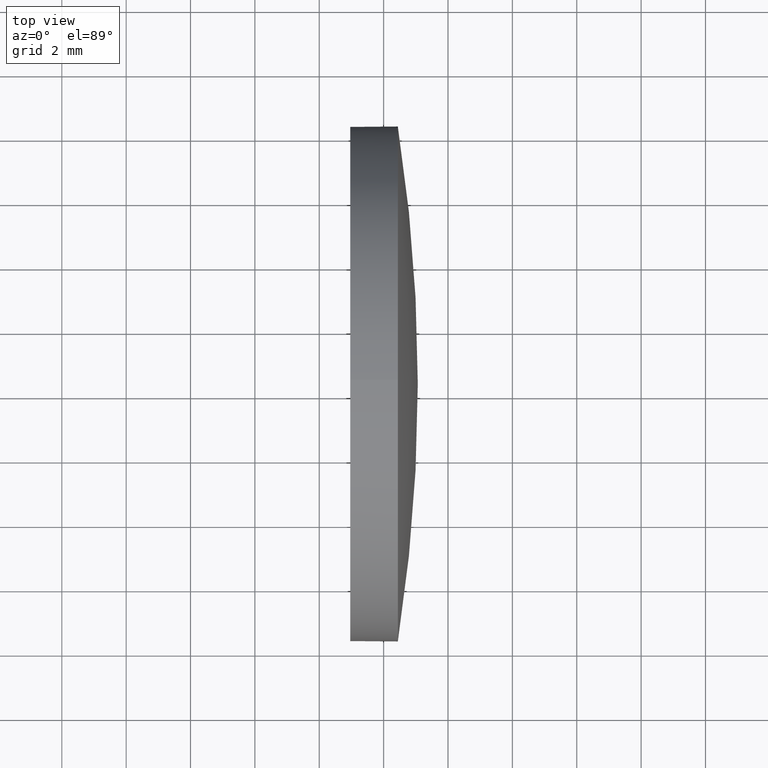
[diagram: clean part render]
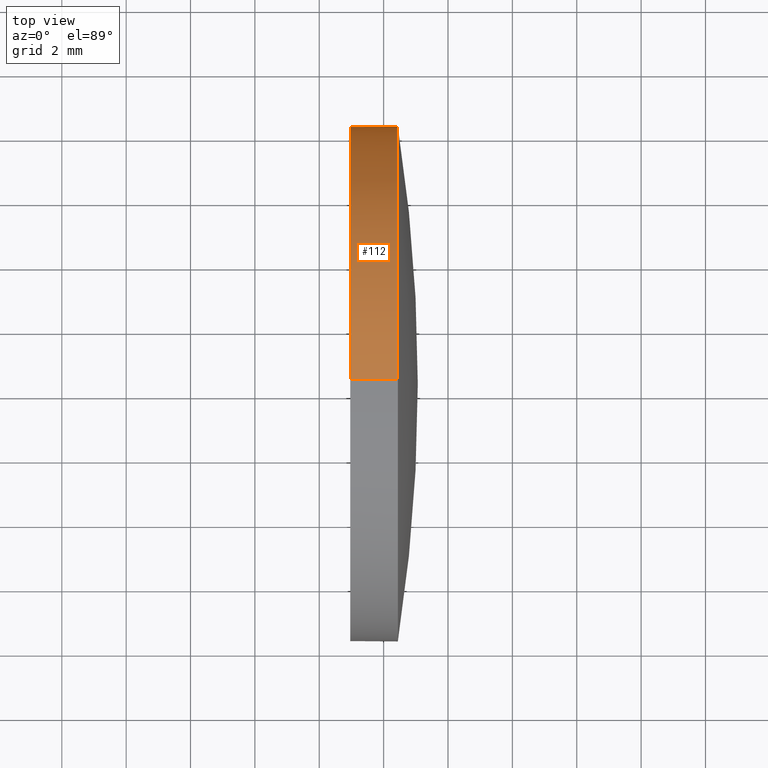
[diagram: same view with one face highlighted and labeled with its STEP entity id]
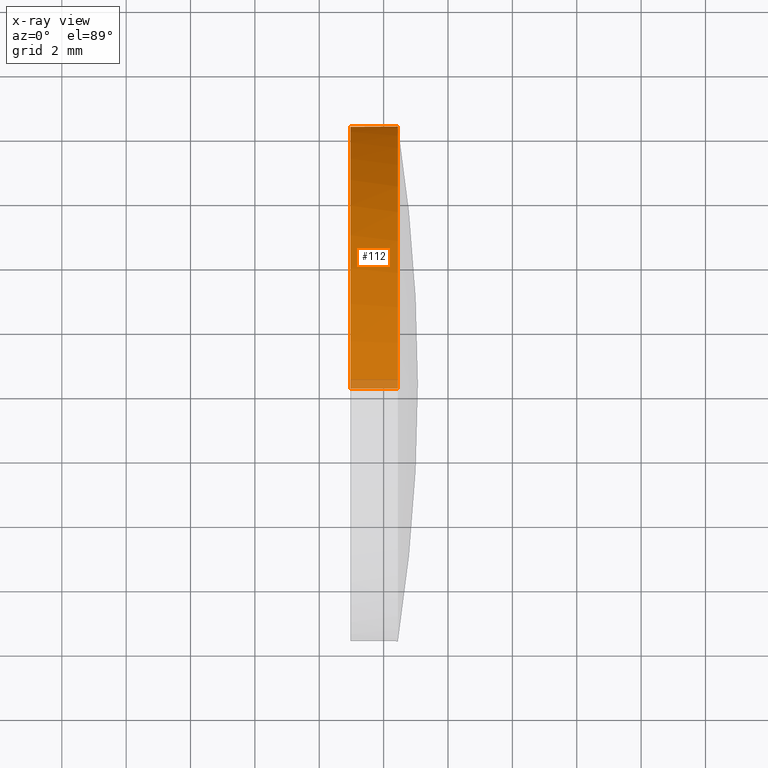
[diagram: x-ray of the same camera — body ghosted, the highlighted face saturated]
A machine part, top view. The second image highlights one B-rep face of the part: STEP entity #112.
The next image is the same camera in x-ray: the body ghosted, the highlighted face saturated — about 3% of this face is hidden behind the body in this view.
In plain terms, the highlighted cylindrical surface (partial cylindrical patch) has radius 8 mm, axis along (-1, -0, -0).
Its self-contained STEP definition (entity closure, byte-faithful):
#2 = VERTEX_POINT ( 'NONE', #34 ) ;
#3 = ORIENTED_EDGE ( 'NONE', *, *, #166, .T. ) ;
#7 = CARTESIAN_POINT ( 'NONE',  ( 432.4406144049648900, 100.3116985881700900, -8.000000000000007100 ) ) ;
#8 = LINE ( 'NONE', #59, #132 ) ;
#12 = DIRECTION ( 'NONE',  ( -1.000000000000000000, -0.0000000000000000000, -0.0000000000000000000 ) ) ;
#18 = FACE_OUTER_BOUND ( 'NONE', #89, .T. ) ;
#19 = VERTEX_POINT ( 'NONE', #7 ) ;
#22 = DIRECTION ( 'NONE',  ( -1.000000000000000000, -0.0000000000000000000, -0.0000000000000000000 ) ) ;
#27 = AXIS2_PLACEMENT_3D ( 'NONE', #143, #12, #28 ) ;
#28 = DIRECTION ( 'NONE',  ( 0.0000000000000000000, 0.0000000000000000000, 1.000000000000000000 ) ) ;
#31 = DIRECTION ( 'NONE',  ( -1.000000000000000000, -0.0000000000000000000, -0.0000000000000000000 ) ) ;
#32 = EDGE_CURVE ( 'NONE', #2, #154, #134, .T. ) ;
#34 = CARTESIAN_POINT ( 'NONE',  ( 432.4406144049648900, 100.3116985881700900, 8.000000000000007100 ) ) ;
#36 = VECTOR ( 'NONE', #85, 1000.000000000000000 ) ;
#41 = CARTESIAN_POINT ( 'NONE',  ( 430.9606144049649300, 100.3116985881700900, -8.000000000000007100 ) ) ;
#42 = CARTESIAN_POINT ( 'NONE',  ( 427.2353457846026000, 100.3116985881700900, 8.000000000000007100 ) ) ;
#50 = CIRCLE ( 'NONE', #147, 8.000000000000007100 ) ;
#59 = CARTESIAN_POINT ( 'NONE',  ( 427.2353457846026000, 100.3116985881700900, -8.000000000000007100 ) ) ;
#68 = VERTEX_POINT ( 'NONE', #173 ) ;
#71 = CARTESIAN_POINT ( 'NONE',  ( 427.2353457846026000, 100.3116985881700900, 0.0000000000000000000 ) ) ;
#72 = DIRECTION ( 'NONE',  ( -1.000000000000000000, -0.0000000000000000000, -0.0000000000000000000 ) ) ;
#76 = ORIENTED_EDGE ( 'NONE', *, *, #32, .T. ) ;
#77 = LINE ( 'NONE', #42, #36 ) ;
#81 = CARTESIAN_POINT ( 'NONE',  ( 432.4406144049648900, 100.3116985881700900, 0.0000000000000000000 ) ) ;
#85 = DIRECTION ( 'NONE',  ( -1.000000000000000000, -0.0000000000000000000, -0.0000000000000000000 ) ) ;
#87 = AXIS2_PLACEMENT_3D ( 'NONE', #179, #22, #162 ) ;
#89 = EDGE_LOOP ( 'NONE', ( #3, #174, #150, #165, #76 ) ) ;
#107 = DIRECTION ( 'NONE',  ( 0.0000000000000000000, 0.0000000000000000000, 1.000000000000000000 ) ) ;
#110 = CARTESIAN_POINT ( 'NONE',  ( 432.4406144049648900, 108.3116985881701000, 9.797174393178815800E-016 ) ) ;
#112 = ADVANCED_FACE ( 'NONE', ( #18 ), #125, .T. ) ;
#118 = AXIS2_PLACEMENT_3D ( 'NONE', #71, #138, #107 ) ;
#122 = EDGE_CURVE ( 'NONE', #68, #127, #139, .T. ) ;
#125 = CYLINDRICAL_SURFACE ( 'NONE', #118, 8.000000000000007100 ) ;
#127 = VERTEX_POINT ( 'NONE', #41 ) ;
#132 = VECTOR ( 'NONE', #31, 1000.000000000000000 ) ;
#134 = CIRCLE ( 'NONE', #87, 8.000000000000007100 ) ;
#138 = DIRECTION ( 'NONE',  ( -1.000000000000000000, -0.0000000000000000000, -0.0000000000000000000 ) ) ;
#139 = CIRCLE ( 'NONE', #27, 8.000000000000007100 ) ;
#143 = CARTESIAN_POINT ( 'NONE',  ( 430.9606144049649300, 100.3116985881700900, 0.0000000000000000000 ) ) ;
#147 = AXIS2_PLACEMENT_3D ( 'NONE', #81, #72, #186 ) ;
#150 = ORIENTED_EDGE ( 'NONE', *, *, #122, .F. ) ;
#154 = VERTEX_POINT ( 'NONE', #110 ) ;
#155 = EDGE_CURVE ( 'NONE', #19, #127, #8, .T. ) ;
#162 = DIRECTION ( 'NONE',  ( 0.0000000000000000000, 0.0000000000000000000, 1.000000000000000000 ) ) ;
#165 = ORIENTED_EDGE ( 'NONE', *, *, #175, .F. ) ;
#166 = EDGE_CURVE ( 'NONE', #154, #19, #50, .T. ) ;
#173 = CARTESIAN_POINT ( 'NONE',  ( 430.9606144049649300, 100.3116985881700900, 8.000000000000007100 ) ) ;
#174 = ORIENTED_EDGE ( 'NONE', *, *, #155, .T. ) ;
#175 = EDGE_CURVE ( 'NONE', #2, #68, #77, .T. ) ;
#179 = CARTESIAN_POINT ( 'NONE',  ( 432.4406144049648900, 100.3116985881700900, 0.0000000000000000000 ) ) ;
#186 = DIRECTION ( 'NONE',  ( 0.0000000000000000000, 0.0000000000000000000, 1.000000000000000000 ) ) ;